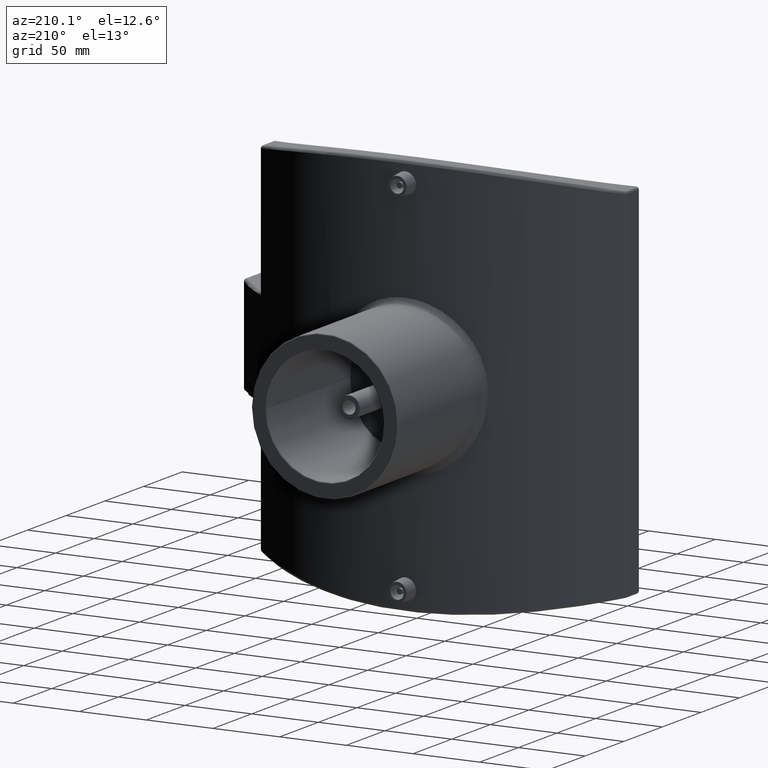
[diagram: clean part render]
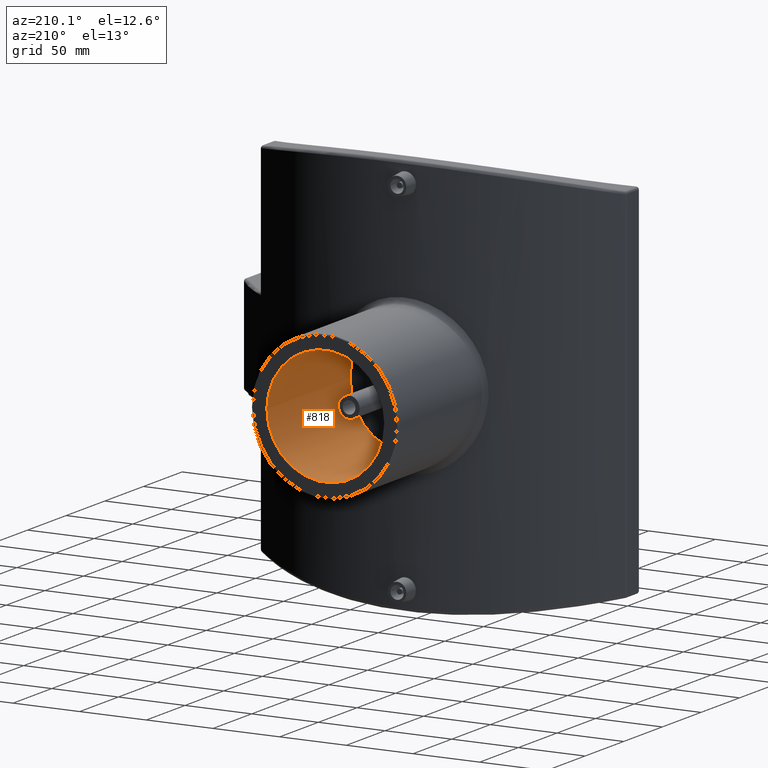
[diagram: same view with one face highlighted and labeled with its STEP entity id]
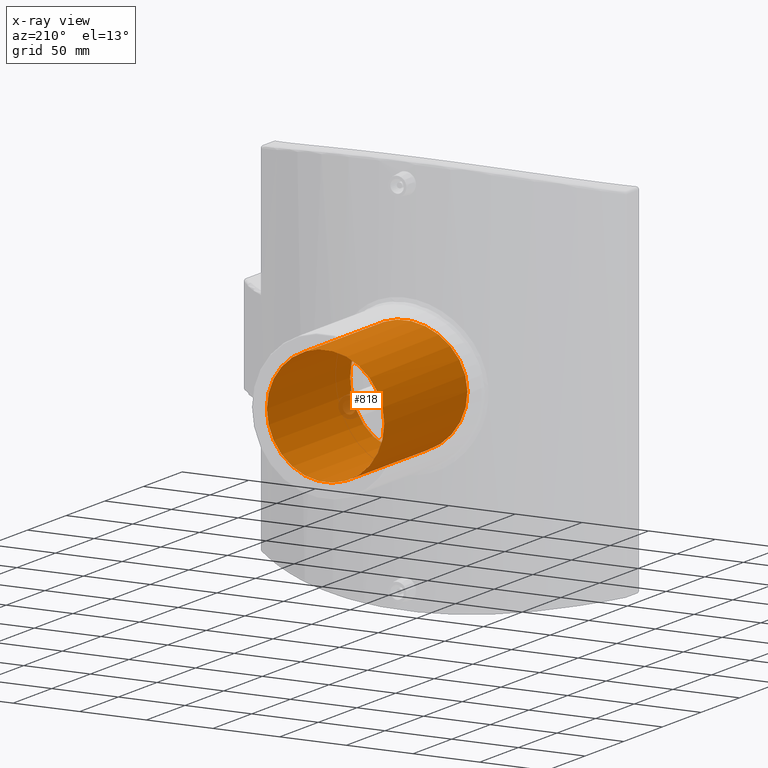
[diagram: x-ray of the same camera — body ghosted, the highlighted face saturated]
A machine part, auxiliary view. The second image highlights one B-rep face of the part: STEP entity #818.
The next image is the same camera in x-ray: the body ghosted, the highlighted face saturated — about 2% of this face is hidden behind the body in this view.
In plain terms, the highlighted cylindrical surface (bore or boss wall) has radius 44 mm, axis along (0, -1, 0).
Its self-contained STEP definition (entity closure, byte-faithful):
#94=B_SPLINE_CURVE_WITH_KNOTS('',3,(#1299,#1300,#1301,#1302,#1303,#1304,
#1305,#1306,#1307,#1308,#1309,#1310,#1311,#1312,#1313,#1314,#1315,#1316,
#1317,#1318,#1319,#1320,#1321,#1322,#1323,#1324,#1325,#1326,#1327,#1328,
#1329,#1330,#1331,#1332,#1333,#1334,#1335,#1336,#1337,#1338,#1339,#1340,
#1341,#1342,#1343,#1344,#1345,#1346,#1347,#1348,#1349,#1350,#1351,#1352,
#1353,#1354,#1355,#1356,#1357,#1358,#1359,#1360,#1361,#1362,#1363,#1364),
 .UNSPECIFIED.,.T.,.F.,(4,2,2,2,2,2,2,2,2,2,2,2,2,2,2,2,2,2,2,2,2,2,2,2,
2,2,2,2,2,2,2,2,4),(0.,0.831267882427774,1.66253576485555,2.49380364728332,
3.3250715297111,4.15628825334656,4.98750497698203,5.8187217006175,6.64993842425296,
7.48115514788843,8.3123718715239,9.14358859515936,9.97480531879483,10.8060732012226,
11.6373410836504,12.4686089660782,13.2998768485059,14.1311447309337,14.9624126133615,
15.7936804957893,16.624948378217,17.4561651018525,18.287381825488,19.1185985491234,
19.9498152727589,20.7810319963944,21.6122487200298,22.4434654436653,23.2746821673008,
24.1059500497285,24.9372179321563,25.7684858145841,26.5997536970119),
 .UNSPECIFIED.);
#115=CYLINDRICAL_SURFACE('',#889,44.);
#158=FACE_BOUND('',#250,.T.);
#181=FACE_OUTER_BOUND('',#249,.T.);
#249=EDGE_LOOP('',(#586));
#250=EDGE_LOOP('',(#587));
#334=CIRCLE('',#885,44.);
#397=VERTEX_POINT('',#1290);
#400=VERTEX_POINT('',#1298);
#468=EDGE_CURVE('',#397,#397,#334,.T.);
#471=EDGE_CURVE('',#400,#400,#94,.T.);
#586=ORIENTED_EDGE('',*,*,#471,.F.);
#587=ORIENTED_EDGE('',*,*,#468,.F.);
#818=ADVANCED_FACE('',(#181,#158),#115,.F.);
#885=AXIS2_PLACEMENT_3D('',#1291,#1012,#1013);
#889=AXIS2_PLACEMENT_3D('',#1297,#1020,#1021);
#1012=DIRECTION('center_axis',(0.,-1.,0.));
#1013=DIRECTION('ref_axis',(1.,0.,0.));
#1020=DIRECTION('center_axis',(0.,-1.,0.));
#1021=DIRECTION('ref_axis',(1.,0.,0.));
#1290=CARTESIAN_POINT('',(-44.,318.2,-5.38844591624836E-15));
#1291=CARTESIAN_POINT('Origin',(0.,318.2,0.));
#1297=CARTESIAN_POINT('Origin',(0.,319.,0.));
#1298=CARTESIAN_POINT('',(44.,210.449518887547,-1.11022302462516E-15));
#1299=CARTESIAN_POINT('Ctrl Pts',(44.,210.449518887547,0.));
#1300=CARTESIAN_POINT('Ctrl Pts',(44.,210.449518887547,-2.77089294142591));
#1301=CARTESIAN_POINT('Ctrl Pts',(43.7340360710395,210.505722843023,-5.63383606448626));
#1302=CARTESIAN_POINT('Ctrl Pts',(42.6166392690917,210.734779564216,-11.3237837066744));
#1303=CARTESIAN_POINT('Ctrl Pts',(41.7654740513269,210.907455751676,-14.1508478918927));
#1304=CARTESIAN_POINT('Ctrl Pts',(39.5179051019544,211.340116501172,-19.568764701137));
#1305=CARTESIAN_POINT('Ctrl Pts',(38.1197143069259,211.600023056337,-22.1640822043318));
#1306=CARTESIAN_POINT('Ctrl Pts',(34.8916849806797,212.156198814287,-26.9616297402886));
#1307=CARTESIAN_POINT('Ctrl Pts',(33.0616219156079,212.451897381558,-29.1637748288083));
#1308=CARTESIAN_POINT('Ctrl Pts',(29.1638947715811,213.021938562589,-33.0615019728351));
#1309=CARTESIAN_POINT('Ctrl Pts',(26.9618053676511,213.316411347094,-34.8915517207866));
#1310=CARTESIAN_POINT('Ctrl Pts',(22.1642226526368,213.868131176333,-38.1196348943472));
#1311=CARTESIAN_POINT('Ctrl Pts',(19.5688143580135,214.124837066849,-39.5178871346491));
#1312=CARTESIAN_POINT('Ctrl Pts',(14.1507205071089,214.551022958509,-41.7655242632481));
#1313=CARTESIAN_POINT('Ctrl Pts',(11.3235727090501,214.72047701117,-42.6166959118697));
#1314=CARTESIAN_POINT('Ctrl Pts',(5.63360259711264,214.945037320194,-43.7340667114915));
#1315=CARTESIAN_POINT('Ctrl Pts',(2.77072241211822,215.,-44.));
#1316=CARTESIAN_POINT('Ctrl Pts',(-2.77072241211822,215.,-44.));
#1317=CARTESIAN_POINT('Ctrl Pts',(-5.63360259711264,214.945037320194,-43.7340667114915));
#1318=CARTESIAN_POINT('Ctrl Pts',(-11.3235727090501,214.72047701117,-42.6166959118697));
#1319=CARTESIAN_POINT('Ctrl Pts',(-14.1507205071089,214.551022958509,-41.7655242632481));
#1320=CARTESIAN_POINT('Ctrl Pts',(-19.5688143580135,214.124837066849,-39.5178871346491));
#1321=CARTESIAN_POINT('Ctrl Pts',(-22.1642226526367,213.868131176333,-38.1196348943472));
#1322=CARTESIAN_POINT('Ctrl Pts',(-26.9618053676511,213.316411347094,-34.8915517207866));
#1323=CARTESIAN_POINT('Ctrl Pts',(-29.1638947715811,213.021938562589,-33.0615019728351));
#1324=CARTESIAN_POINT('Ctrl Pts',(-33.0616219156079,212.451897381558,-29.1637748288083));
#1325=CARTESIAN_POINT('Ctrl Pts',(-34.8916849806797,212.156198814287,-26.9616297402887));
#1326=CARTESIAN_POINT('Ctrl Pts',(-38.1197143069259,211.600023056337,-22.1640822043318));
#1327=CARTESIAN_POINT('Ctrl Pts',(-39.5179051019544,211.340116501172,-19.568764701137));
#1328=CARTESIAN_POINT('Ctrl Pts',(-41.7654740513269,210.907455751676,-14.1508478918927));
#1329=CARTESIAN_POINT('Ctrl Pts',(-42.6166392690917,210.734779564216,-11.3237837066744));
#1330=CARTESIAN_POINT('Ctrl Pts',(-43.7340360710395,210.505722843023,-5.63383606448626));
#1331=CARTESIAN_POINT('Ctrl Pts',(-44.,210.449518887547,-2.77089294142591));
#1332=CARTESIAN_POINT('Ctrl Pts',(-44.,210.449518887547,2.77089294142591));
#1333=CARTESIAN_POINT('Ctrl Pts',(-43.7340360710395,210.505722843023,5.63383606448626));
#1334=CARTESIAN_POINT('Ctrl Pts',(-42.6166392690917,210.734779564216,11.3237837066744));
#1335=CARTESIAN_POINT('Ctrl Pts',(-41.7654740513269,210.907455751676,14.1508478918927));
#1336=CARTESIAN_POINT('Ctrl Pts',(-39.5179051019544,211.340116501172,19.568764701137));
#1337=CARTESIAN_POINT('Ctrl Pts',(-38.1197143069259,211.600023056337,22.1640822043318));
#1338=CARTESIAN_POINT('Ctrl Pts',(-34.8916849806797,212.156198814287,26.9616297402887));
#1339=CARTESIAN_POINT('Ctrl Pts',(-33.0616219156079,212.451897381558,29.1637748288083));
#1340=CARTESIAN_POINT('Ctrl Pts',(-29.1638947715812,213.021938562589,33.0615019728351));
#1341=CARTESIAN_POINT('Ctrl Pts',(-26.9618053676511,213.316411347094,34.8915517207866));
#1342=CARTESIAN_POINT('Ctrl Pts',(-22.1642226526368,213.868131176333,38.1196348943472));
#1343=CARTESIAN_POINT('Ctrl Pts',(-19.5688143580135,214.124837066849,39.5178871346491));
#1344=CARTESIAN_POINT('Ctrl Pts',(-14.1507205071089,214.551022958509,41.7655242632481));
#1345=CARTESIAN_POINT('Ctrl Pts',(-11.3235727090501,214.72047701117,42.6166959118697));
#1346=CARTESIAN_POINT('Ctrl Pts',(-5.63360259711263,214.945037320194,43.7340667114915));
#1347=CARTESIAN_POINT('Ctrl Pts',(-2.77072241211822,215.,44.));
#1348=CARTESIAN_POINT('Ctrl Pts',(2.77072241211822,215.,44.));
#1349=CARTESIAN_POINT('Ctrl Pts',(5.63360259711264,214.945037320194,43.7340667114915));
#1350=CARTESIAN_POINT('Ctrl Pts',(11.3235727090501,214.72047701117,42.6166959118697));
#1351=CARTESIAN_POINT('Ctrl Pts',(14.1507205071089,214.551022958509,41.7655242632481));
#1352=CARTESIAN_POINT('Ctrl Pts',(19.5688143580135,214.124837066849,39.5178871346491));
#1353=CARTESIAN_POINT('Ctrl Pts',(22.1642226526367,213.868131176333,38.1196348943472));
#1354=CARTESIAN_POINT('Ctrl Pts',(26.9618053676511,213.316411347094,34.8915517207867));
#1355=CARTESIAN_POINT('Ctrl Pts',(29.1638947715811,213.021938562589,33.0615019728351));
#1356=CARTESIAN_POINT('Ctrl Pts',(33.0616219156079,212.451897381558,29.1637748288083));
#1357=CARTESIAN_POINT('Ctrl Pts',(34.8916849806797,212.156198814287,26.9616297402886));
#1358=CARTESIAN_POINT('Ctrl Pts',(38.119714306926,211.600023056337,22.1640822043317));
#1359=CARTESIAN_POINT('Ctrl Pts',(39.5179051019544,211.340116501172,19.568764701137));
#1360=CARTESIAN_POINT('Ctrl Pts',(41.7654740513269,210.907455751676,14.1508478918927));
#1361=CARTESIAN_POINT('Ctrl Pts',(42.6166392690917,210.734779564216,11.3237837066744));
#1362=CARTESIAN_POINT('Ctrl Pts',(43.7340360710395,210.505722843023,5.63383606448625));
#1363=CARTESIAN_POINT('Ctrl Pts',(44.,210.449518887547,2.77089294142591));
#1364=CARTESIAN_POINT('Ctrl Pts',(44.,210.449518887547,5.55111512312578E-16));